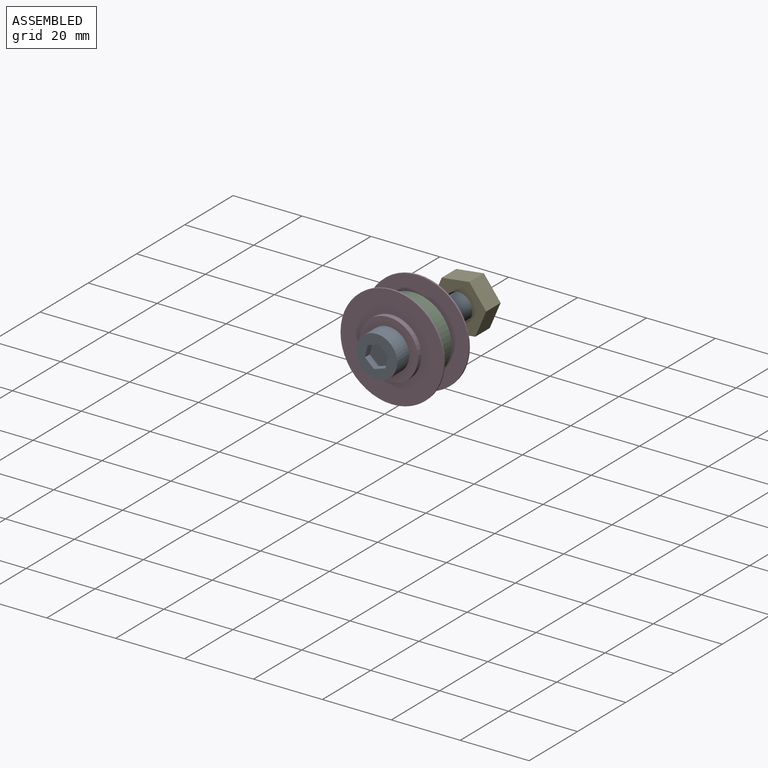
[diagram: assembled view]
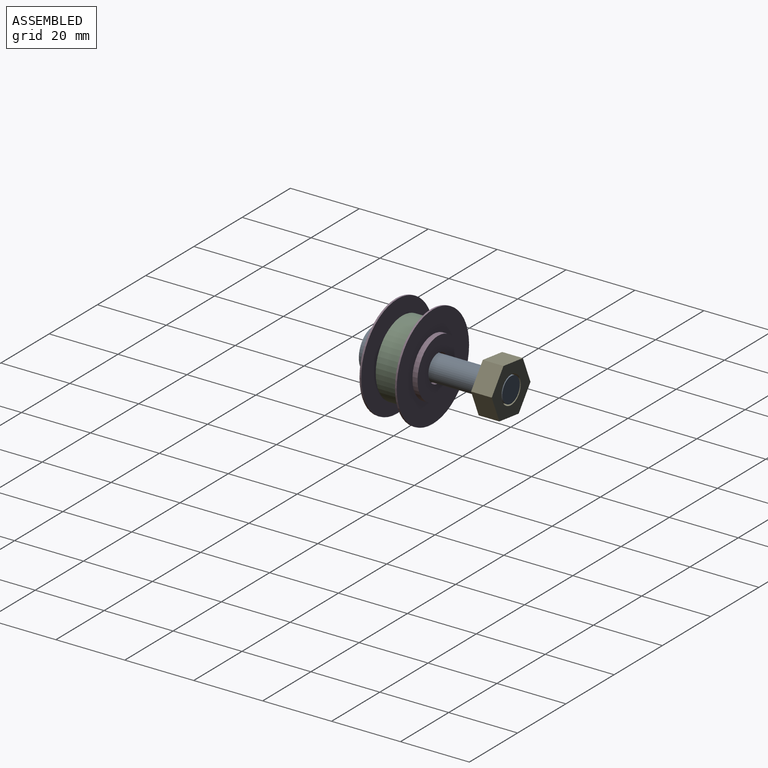
[diagram: assembled view, second angle]
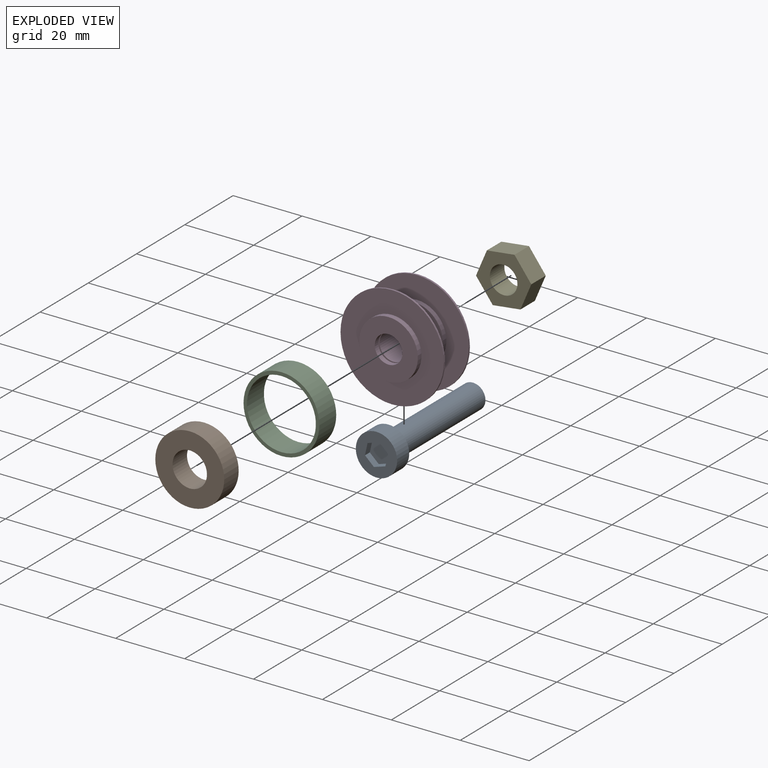
[diagram: exploded view]
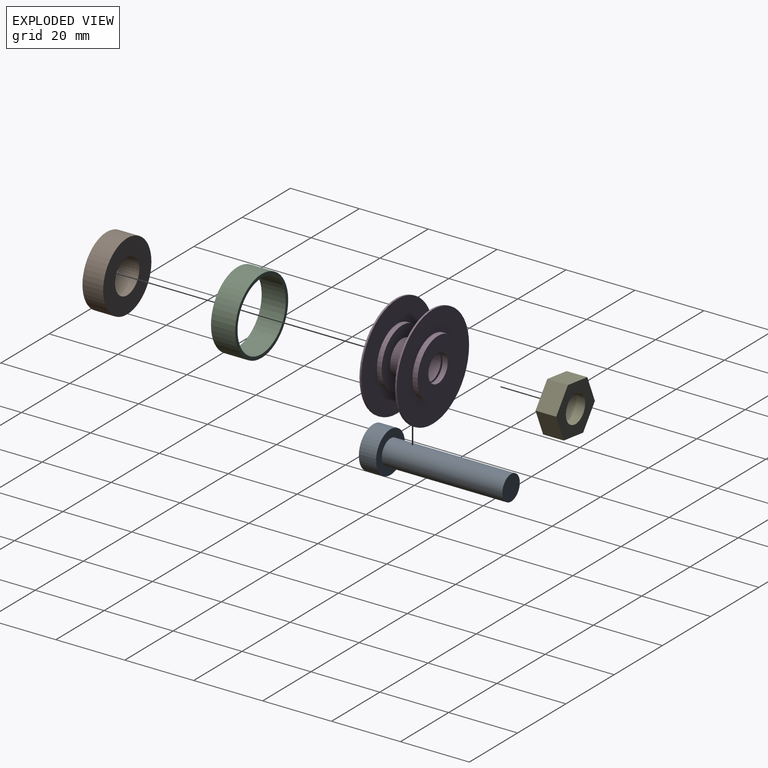
[diagram: exploded view, second angle]
ASSEMBLY  parts=5 mates=4
PART A: 12 faces, bbox 12x40x12 mm
  f0: plane 12x12mm, normal (0,1,0), area 71.9mm2, adj f1,f4
  f1: cylinder r=3.62mm len=35mm, axis (0,-1,0), area 795.9mm2, adj f0,f2
  f2: plane 7.24x7.24mm, normal (0,1,0), area 41.2mm2, adj f1
  f3: plane 12x12mm, normal (0,-1,0), area 81.1mm2, adj f4,f5,f6,f7,f8,f9,f10
  f4: cylinder r=6mm len=12mm, axis (0,-1,0), area 188.5mm2, adj f0,f3
  f5: plane 2.59x2.37mm, normal (0.68,0,0.74), area 7mm2, adj f3,f6,f10,f11
  f6: plane 3.35x2mm, normal (-0.3,0,0.95), area 7mm2, adj f3,f5,f7,f11
  f7: plane 3.43x2mm, normal (-0.98,0,0.22), area 7mm2, adj f3,f6,f8,f11
  f8: plane 2.59x2.37mm, normal (-0.68,0,-0.74), area 7mm2, adj f3,f7,f9,f11
  f9: plane 3.35x2mm, normal (0.3,0,-0.95), area 7mm2, adj f3,f8,f10,f11
  f10: plane 3.43x2mm, normal (0.98,0,-0.22), area 7mm2, adj f3,f5,f9,f11
  f11: plane 6.85x6.69mm, normal (0,-1,0), area 32mm2, adj f5,f6,f7,f8,f9,f10
PART B: 4 faces, bbox 20x6x20 mm
  f0: cylinder r=5mm len=10mm, axis (0,1,0), area 188.5mm2, adj f2,f3
  f1: cylinder r=10mm len=20mm, axis (0,1,0), area 377mm2, adj f2,f3
  f2: plane 20x20mm, normal (0,-1,0), area 235.6mm2, adj f0,f1
  f3: plane 20x20mm, normal (0,1,0), area 235.6mm2, adj f0,f1
PART C: 4 faces, bbox 22x7x22 mm
  f0: cylinder r=10mm len=20mm, axis (0,1,0), area 439.8mm2, adj f2,f3
  f1: cylinder r=11mm len=22mm, axis (0,1,0), area 483.8mm2, adj f2,f3
  f2: plane 22x22mm, normal (0,-1,0), area 66mm2, adj f0,f1
  f3: plane 22x22mm, normal (0,1,0), area 66mm2, adj f0,f1
PART D: 24 faces, bbox 30x13.8x30 mm
  f0: cylinder r=4mm len=9.8mm, axis (0,1,0), area 246.3mm2, adj f2,f9
  f1: cylinder r=5mm len=10mm, axis (0,1,0), area 219.9mm2, adj f4,f11
  f2: plane 12.83x12.83mm, normal (0,-1,0), area 78.9mm2, adj f0,f7
  f3: cylinder r=8.5mm len=17mm, axis (0,1,0), area 74.8mm2, adj f4,f5
  f4: plane 17x17mm, normal (0,1,0), area 148.4mm2, adj f1,f3
  f5: plane 30x30mm, normal (0,1,0), area 479.9mm2, adj f3,f6
  f6: cylinder r=15mm len=30mm, axis (0,1,0), area 47.1mm2, adj f5,f8
  f7: cylinder r=6.41mm len=12.83mm, axis (0,1,0), area 20.1mm2, adj f2,f19
  f8: plane 30x30mm, normal (0,-1,0), area 479.9mm2, adj f6,f16
  f9: plane 12.83x12.83mm, normal (0,1,0), area 78.9mm2, adj f0,f14
  f10: cylinder r=8.5mm len=17mm, axis (0,-1,0), area 74.8mm2, adj f11,f12
  f11: plane 17x17mm, normal (0,-1,0), area 148.4mm2, adj f1,f10
  f12: plane 30x30mm, normal (0,-1,0), area 479.9mm2, adj f10,f13
  f13: cylinder r=15mm len=30mm, axis (0,-1,0), area 47.1mm2, adj f12,f15
  f14: cylinder r=6.41mm len=12.83mm, axis (0,-1,0), area 20.1mm2, adj f9,f20
  f15: plane 30x30mm, normal (0,1,0), area 479.9mm2, adj f13,f21
  f16: cylinder r=8.5mm len=17mm, axis (0,1,0), area 80.1mm2, adj f8,f18
  f17: cylinder r=4mm len=8mm, axis (0,1,0), area 37.7mm2, adj f18,f19
  f18: plane 17x17mm, normal (0,-1,0), area 176.7mm2, adj f16,f17
  f19: plane 12.83x12.83mm, normal (0,1,0), area 78.9mm2, adj f7,f17
  f20: plane 12.83x12.83mm, normal (0,-1,0), area 78.9mm2, adj f14,f22
  f21: cylinder r=8.5mm len=17mm, axis (0,-1,0), area 80.1mm2, adj f15,f23
  f22: cylinder r=4mm len=8mm, axis (0,-1,0), area 37.7mm2, adj f20,f23
  f23: plane 17x17mm, normal (0,1,0), area 176.7mm2, adj f21,f22
PART E: 9 faces, bbox 16x14.9x6 mm
  f0: plane 8.02x6mm, normal (0.12,-0.99,0), area 48.5mm2, adj f1,f6,f7,f8
  f1: plane 7.44x6mm, normal (0.92,-0.39,0), area 48.5mm2, adj f0,f2,f7,f8
  f2: plane 6.45x6mm, normal (0.8,0.6,0), area 48.5mm2, adj f1,f3,f7,f8
  f3: plane 8.02x6mm, normal (-0.12,0.99,0), area 48.5mm2, adj f2,f4,f7,f8
  f4: plane 7.44x6mm, normal (-0.92,0.39,0), area 48.5mm2, adj f3,f6,f7,f8
  f5: cylinder r=4mm len=8mm, axis (0,0,-1), area 150.8mm2, adj f7,f8
  f6: plane 6.45x6mm, normal (-0.8,-0.6,0), area 48.5mm2, adj f0,f4,f7,f8
  f7: plane 16.04x14.88mm, normal (0,0,1), area 119.5mm2, adj f0,f1,f2,f3,f4,f5,f6
  f8: plane 16.04x14.88mm, normal (0,0,-1), area 119.5mm2, adj f0,f1,f2,f3,f4,f5,f6
PLACE A t=(0,0.27,0)mm
PLACE B at identity
PLACE C at identity
PLACE D at identity
PLACE E rot(axis=(1,0,0),90deg) t=(0,28.1,0)mm
MATE fastened A.f1 <-> D.f17  axis (0,-1,0) through (0,-6.9,0)mm
MATE fastened D.f0 <-> B.f0  axis (0,1,0) through (0,0,0)mm
MATE fastened B.f0 <-> C.f0  axis (0,1,0) through (0,0,0)mm
MATE fastened E.f5 <-> A.f1  axis (0,1,0) through (0,28.1,0)mm
